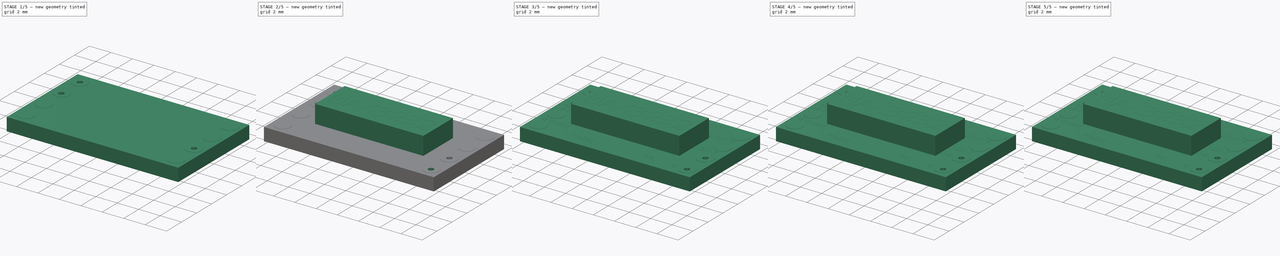
[diagram: build sequence overview — one tinted view per stage of 5, left to right]
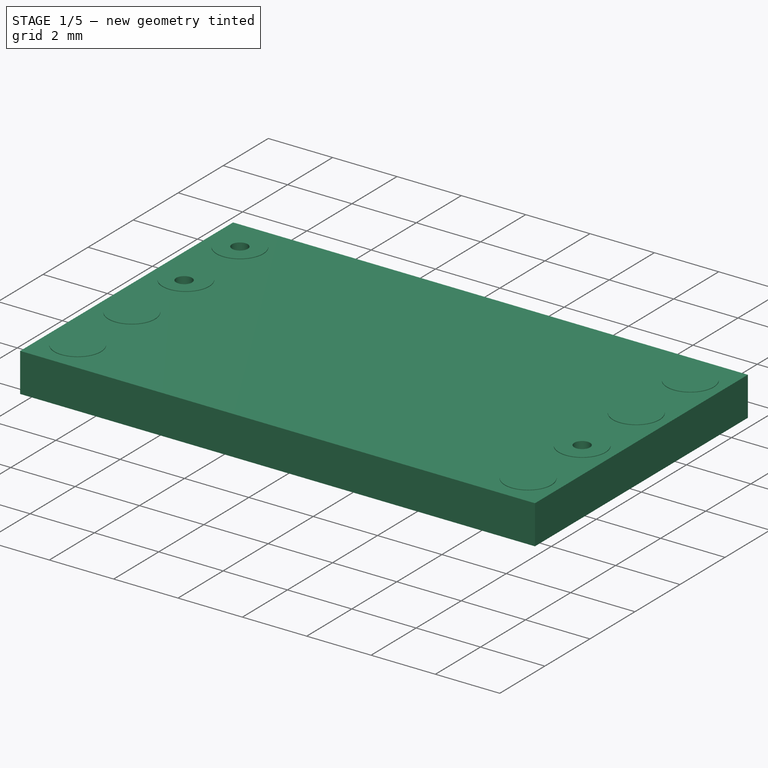
[diagram: stage 1 of 5 — iso view after this stage's code; geometry added in this stage tinted green]
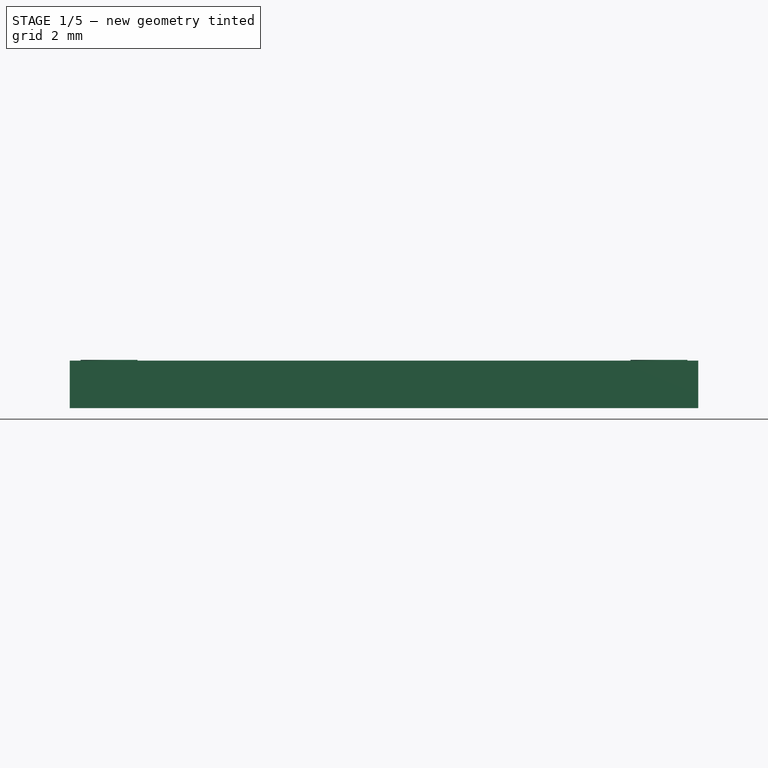
[diagram: stage 1 of 5 — front view after this stage's code; geometry added in this stage tinted green]
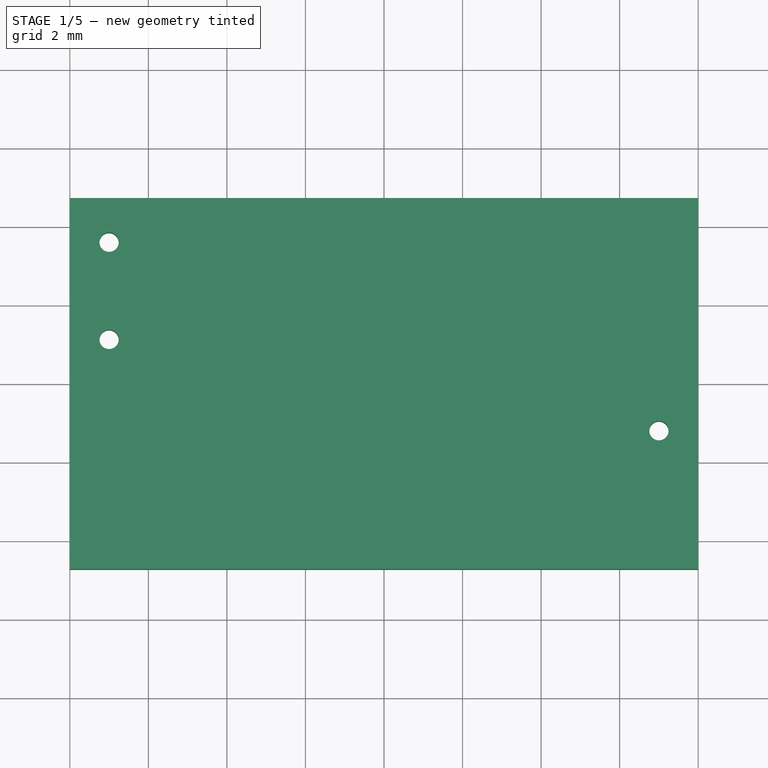
[diagram: stage 1 of 5 — top view after this stage's code; geometry added in this stage tinted green]
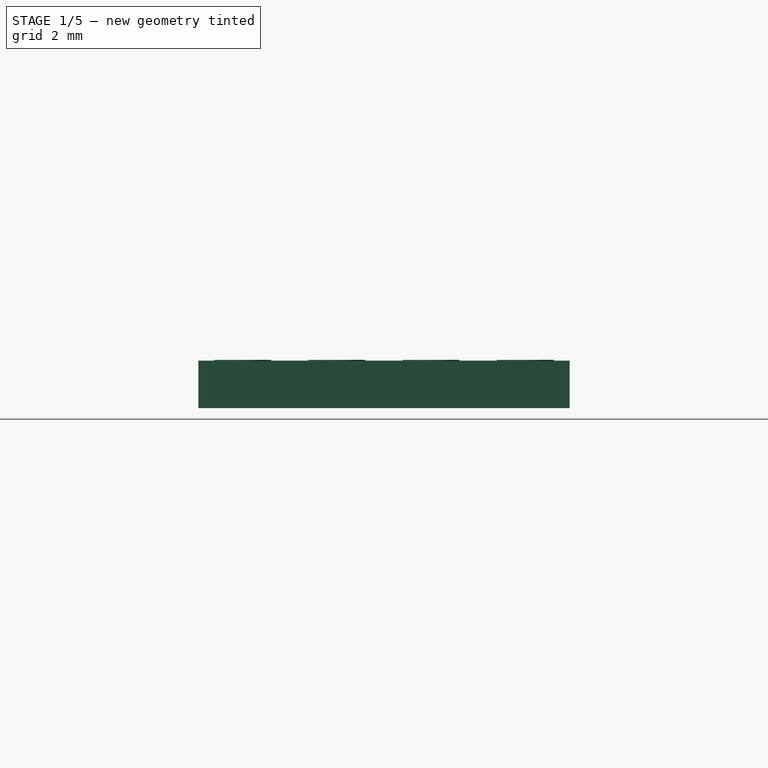
[diagram: stage 1 of 5 — right view after this stage's code; geometry added in this stage tinted green]
FCSTD DOCUMENT  (FreeCAD 0.20R29177 +426 (Git))
Label: Max3232_Module
Comment: This is a drawing to aid in documenting using this module.
License: Creative Commons Attribution
LicenseURL: http://creativecommons.org/licenses/by/4.0/
objects: PartDesign::Pad×23, Part::Part2DObjectPython×20, Sketcher::SketchObject×5, PartDesign::LinearPattern×3, PartDesign::Pocket×2, PartDesign::Body×1
note: 79 computed .brp shape members not serialized (recipe doc carries the construction recipe); baked Part::Feature solids carry a one-line shape summary decoded from their .brp

FEATURE [Sketcher::SketchObject] Sketch
  FullyConstrained = true
  MapMode = 5
  Support = -> [XY_Plane]
  sketch-geometry (4):
    g0: LineSegment StartX=-8 StartY=4.725 StartZ=0 EndX=8 EndY=4.725 EndZ=0
    g1: LineSegment StartX=8 StartY=4.725 StartZ=0 EndX=8 EndY=-4.725 EndZ=0
    g2: LineSegment StartX=8 StartY=-4.725 StartZ=0 EndX=-8 EndY=-4.725 EndZ=0
    g3: LineSegment StartX=-8 StartY=-4.725 StartZ=0 EndX=-8 EndY=4.725 EndZ=0
  constraints (10):
    c: Coincident(g0,g1)
    c: Coincident(g1,g2)
    c: Coincident(g2,g3)
    c: Coincident(g3,g0)
    c: Horizontal(g2)
    c: Vertical(g1)
    c: DistanceY(g2,g0) = 9.45  'BoardSizeY'
    c: DistanceX(g0,g0) = 16  'BoardSizeX'
    c: Symmetric(g0,g0,g-2)
    c: Symmetric(g0,g2,g-1)
FEATURE [PartDesign::Pad] Pad  label="Board"
  Direction = (0,0,1)
  Length = 1.21
  Length2 = 10
  Profile = -> Sketch
  ReferenceAxis = -> Sketch [N_Axis]
  Type = 0
FEATURE [Sketcher::SketchObject] Sketch001
  ExternalGeometry = -> [Pad]
  FullyConstrained = true
  MapMode = 5
  Support = -> [XY_Plane]
  expr: .Constraints.PadOffsetY = .Constraints.PadDiameter / 2 + 0.4mm
  expr: Constraints[4] = .Constraints.PadOffsetX
  expr: Constraints[5] = .Constraints.PadOffsetY
  sketch-geometry (2):
    g0: Circle CenterX=-7 CenterY=3.6 CenterZ=0 NormalX=0 NormalY=0 NormalZ=1 AngleXU=0 Radius=0.725
    g1: Circle CenterX=7 CenterY=3.6 CenterZ=0 NormalX=0 NormalY=0 NormalZ=1 AngleXU=0 Radius=0.725
  constraints (6):
    c: Diameter(g0) = 1.45  'PadDiameter'
    c: DistanceX(g-3,g0) = 1  'PadOffsetX'
    c: DistanceY(g0,g-3) = 1.125  'PadOffsetY'
    c: Equal(g1,g0)
    c: DistanceX(g1,g-4) = 1
    c: DistanceY(g1,g-4) = 1.125
FEATURE [PartDesign::Pad] Pad001
  BaseFeature = -> Pad
  Direction = (0,0,1)
  Length = 1.23
  Length2 = 10
  Profile = -> Sketch001
  ReferenceAxis = -> Sketch001 [N_Axis]
  Type = 0
  expr: Length = <<Board>>.Length + 0.02mm
FEATURE [PartDesign::LinearPattern] LinearPattern
  BaseFeature = -> Pad001
  Direction = -> Sketch001 [V_Axis]
  Length = 7.2
  Occurrences = 4
  Originals = -> [Pad001]
  Reversed = true
  expr: Length = Sketch.Constraints.BoardSizeY - Sketch001.Constraints.PadOffsetY * 2
FEATURE [Sketcher::SketchObject] Sketch002
  ExternalGeometry = -> [LinearPattern]
  FullyConstrained = true
  MapMode = 5
  Support = -> [XY_Plane]
  sketch-geometry (1):
    g0: Circle CenterX=-7 CenterY=3.6 CenterZ=0 NormalX=0 NormalY=0 NormalZ=1 AngleXU=0 Radius=0.245
  constraints (2):
    c: Coincident(g-4,g0)
    c: Diameter(g0) = 0.49  'PinHole'
FEATURE [PartDesign::Pocket] Pocket
  BaseFeature = -> LinearPattern
  Direction = (0,0,-1)
  Length = 4
  Length2 = 5
  Profile = -> Sketch002
  ReferenceAxis = -> Sketch002 [N_Axis]
  Reversed = true
  Type = 1
FEATURE [PartDesign::LinearPattern] LinearPattern001
  BaseFeature = -> Pocket
  Direction = -> Sketch002 [V_Axis]
  Length = 2.475
  Occurrences = 2
  Originals = -> [Pocket]
  Reversed = true
  expr: Length = Sketch.Constraints.BoardSizeY / 2 - Sketch001.Constraints.PadOffsetY * 2
FEATURE [Sketcher::SketchObject] Sketch003
  ExternalGeometry = -> [LinearPattern001]
  FullyConstrained = true
  MapMode = 5
  Support = -> [XY_Plane]
  expr: Constraints[0] = Sketch002.Constraints.PinHole
  sketch-geometry (1):
    g0: Circle CenterX=7 CenterY=-1.2 CenterZ=0 NormalX=0 NormalY=0 NormalZ=1 AngleXU=0 Radius=0.245
  constraints (2):
    c: Diameter(g0) = 0.49
    c: Coincident(g0,g-3)
FEATURE [PartDesign::Pocket] Pocket001
  BaseFeature = -> LinearPattern001
  Direction = (0,0,-1)
  Length = 5
  Length2 = 5
  Profile = -> Sketch003
  ReferenceAxis = -> Sketch003 [N_Axis]
  Reversed = true
  Type = 1
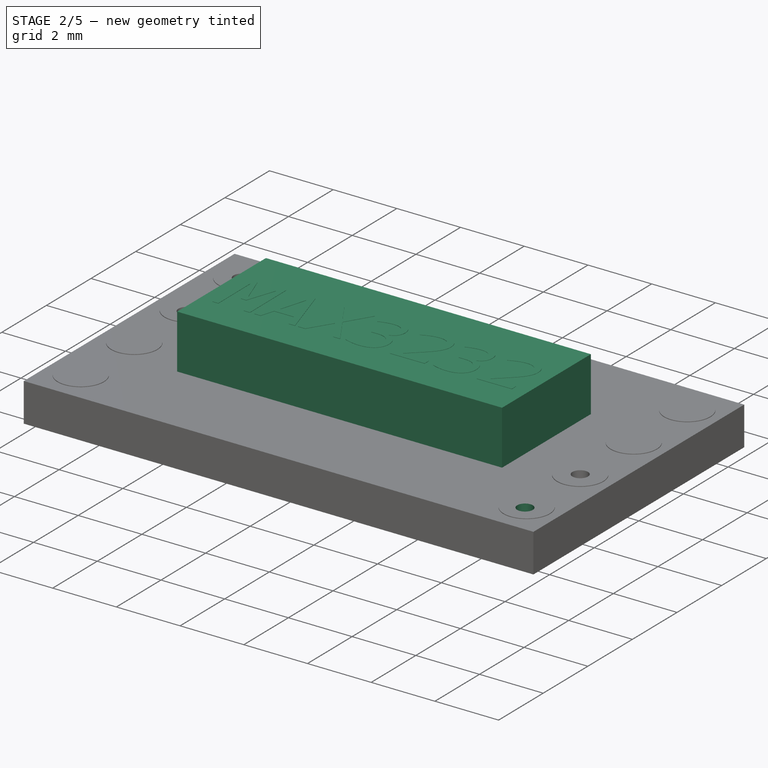
[diagram: stage 2 of 5 — iso view after this stage's code; geometry added in this stage tinted green]
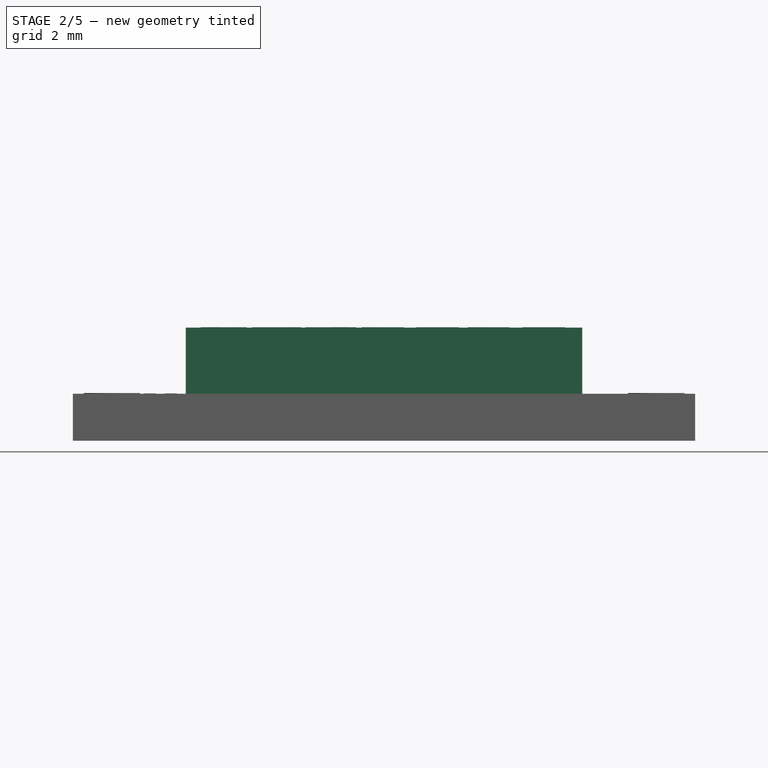
[diagram: stage 2 of 5 — front view after this stage's code; geometry added in this stage tinted green]
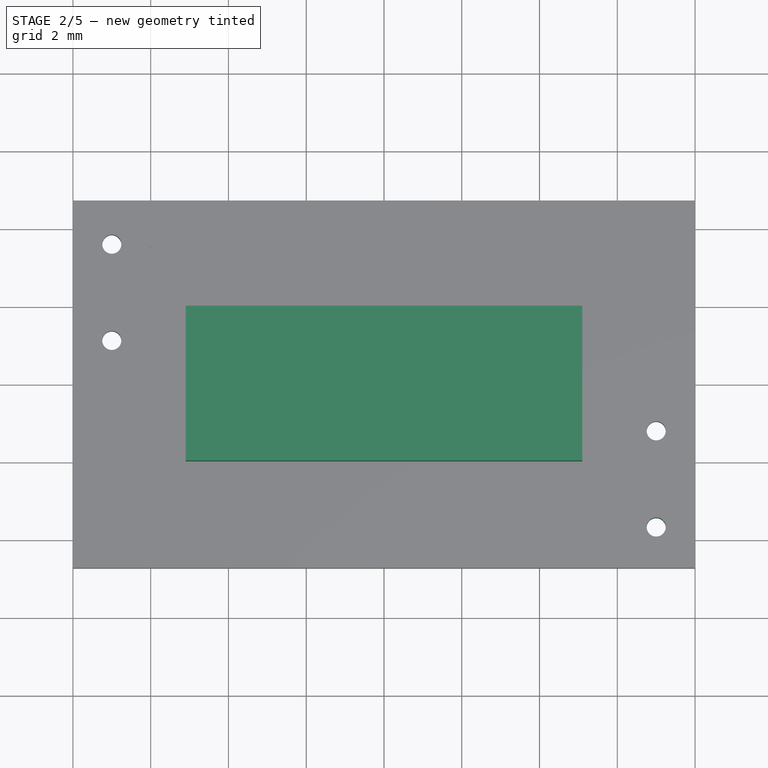
[diagram: stage 2 of 5 — top view after this stage's code; geometry added in this stage tinted green]
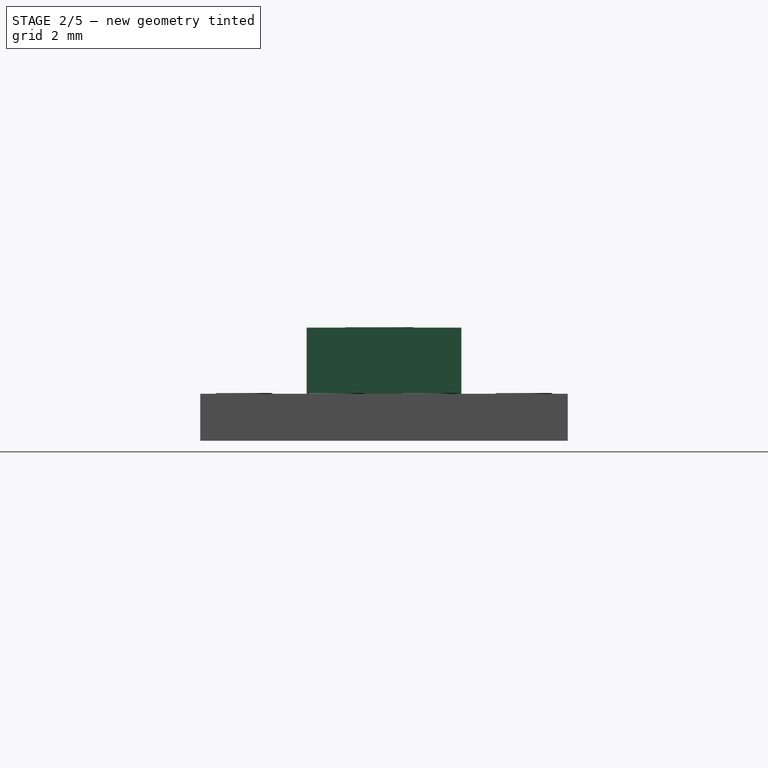
[diagram: stage 2 of 5 — right view after this stage's code; geometry added in this stage tinted green]
FEATURE [PartDesign::LinearPattern] LinearPattern002
  BaseFeature = -> Pocket001
  Direction = -> Sketch003 [V_Axis]
  Length = 2.475
  Occurrences = 2
  Originals = -> [Pocket001]
  Reversed = true
  expr: Length = Sketch.Constraints.BoardSizeY / 2 - Sketch001.Constraints.PadOffsetY * 2
FEATURE [Sketcher::SketchObject] Sketch004
  AttachmentOffset = pos=(0,0,1.21) rot=(0,0,1;0rad)
  FullyConstrained = true
  MapMode = 5
  Placement = pos=(0,0,1.21) rot=(0,0,1;0rad)
  Support = -> [XY_Plane]
  expr: .AttachmentOffset.Base.z = <<Board>>.Length
  sketch-geometry (4):
    g0: LineSegment StartX=-5.1 StartY=1.99 StartZ=0 EndX=5.1 EndY=1.99 EndZ=0
    g1: LineSegment StartX=5.1 StartY=1.99 StartZ=0 EndX=5.1 EndY=-1.99 EndZ=0
    g2: LineSegment StartX=5.1 StartY=-1.99 StartZ=0 EndX=-5.1 EndY=-1.99 EndZ=0
    g3: LineSegment StartX=-5.1 StartY=-1.99 StartZ=0 EndX=-5.1 EndY=1.99 EndZ=0
  constraints (10):
    c: Coincident(g0,g1)
    c: Coincident(g1,g2)
    c: Coincident(g2,g3)
    c: Coincident(g3,g0)
    c: Horizontal(g2)
    c: Vertical(g1)
    c: DistanceX(g0,g0) = 10.2  'MAX3232_Length'
    c: DistanceY(g3,g3) = 3.98  'MAX3232_Width'
    c: Symmetric(g0,g0,g-2)
    c: Symmetric(g0,g2,g-1)
FEATURE [PartDesign::Pad] Pad002
  BaseFeature = -> LinearPattern002
  Direction = (0,0,1)
  Length = 1.7
  Length2 = 10
  Profile = -> Sketch004
  ReferenceAxis = -> Sketch004 [N_Axis]
  Type = 0
FEATURE [Part::Part2DObjectPython] ShapeString  # Draft 2D object (typed FeaturePython)
  FontFile = <path>
  MakeFace = true
  Placement = pos=(-4.79704,-0.981008,2.91) rot=(0,0,1;0.006688rad)
  Size = 1.75
  String = MAX3232
  Tracking = 0
FEATURE [PartDesign::Pad] Pad003
  BaseFeature = -> Pad002
  Direction = (0,0,1)
  Length = 0.01
  Length2 = 10
  Profile = -> ShapeString
  ReferenceAxis = -> ShapeString [N_Axis]
  Type = 0
FEATURE [Part::Part2DObjectPython] ShapeString001  # Draft 2D object (typed FeaturePython)
  FontFile = <path>
  MakeFace = true
  Placement = pos=(-6.21,3.52,1.21) rot=(0,0,1;0rad)
  Size = 0.5
  String = 1 -
  Tracking = 0
FEATURE [Part::Part2DObjectPython] ShapeString002  # Draft 2D object (typed FeaturePython)
  FontFile = <path>
  MakeFace = true
  Placement = pos=(-6.19669,0.91707,1.21) rot=(0,0,1;0rad)
  Size = 0.5
  String = 2 +
  Tracking = 0
FEATURE [Part::Part2DObjectPython] ShapeString003  # Draft 2D object (typed FeaturePython)
  FontFile = <path>
  MakeFace = true
  Placement = pos=(-7.36191,-0.352329,1.21) rot=(0,0,1;0rad)
  Size = 0.5
  String = 3 R2IN
  Tracking = 0
FEATURE [Part::Part2DObjectPython] ShapeString004  # Draft 2D object (typed FeaturePython)
  FontFile = <path>
  MakeFace = true
  Placement = pos=(-7.4172,-2.71665,1.21) rot=(0,0,1;0rad)
  Size = 0.5
  String = 4 T1OUT
  Tracking = 0
FEATURE [Part::Part2DObjectPython] ShapeString005  # Draft 2D object (typed FeaturePython)
  FontFile = <path>
  MakeFace = true
  Placement = pos=(-3.89806,-3.83004,1.21) rot=(0,0,1;0rad)
  Size = 0.5
  String = RS232                           TTL
  Tracking = 0
FEATURE [Part::Part2DObjectPython] ShapeString006  # Draft 2D object (typed FeaturePython)
  FontFile = <path>
  MakeFace = true
  Placement = pos=(5.27,-3.95,1.21) rot=(0,0,1;0rad)
  Size = 0.5
  String = - 5
  Tracking = 0
FEATURE [Part::Part2DObjectPython] ShapeString008  # Draft 2D object (typed FeaturePython)
  FontFile = <path>
  MakeFace = true
  Placement = pos=(5.24,-0.22,1.21) rot=(0,0,1;0rad)
  Size = 0.5
  String = T2IN 7
  Tracking = 0
FEATURE [Part::Part2DObjectPython] ShapeString009  # Draft 2D object (typed FeaturePython)
  FontFile = <path>
  MakeFace = true
  Placement = pos=(4.40656,2.21341,1.21) rot=(0,0,1;0rad)
  Size = 0.5
  String = R2OUT 8
  Tracking = 0
FEATURE [Part::Part2DObjectPython] ShapeString010  # Draft 2D object (typed FeaturePython)
  FontFile = <path>
  MakeFace = true
  Placement = pos=(5.17279,-1.51148,1.21) rot=(0,0,1;0rad)
  Size = 0.5
  String = + 6
  Tracking = 0
FEATURE [PartDesign::Pad] Pad004
  BaseFeature = -> Pad003
  Direction = (0,0,1)
  Length = 0.01
  Length2 = 10
  Profile = -> ShapeString001
  ReferenceAxis = -> ShapeString001 [N_Axis]
  Type = 0
FEATURE [PartDesign::Pad] Pad005
  BaseFeature = -> Pad004
  Direction = (0,0,1)
  Length = 0.01
  Length2 = 10
  Profile = -> ShapeString002
  ReferenceAxis = -> ShapeString002 [N_Axis]
  Type = 0
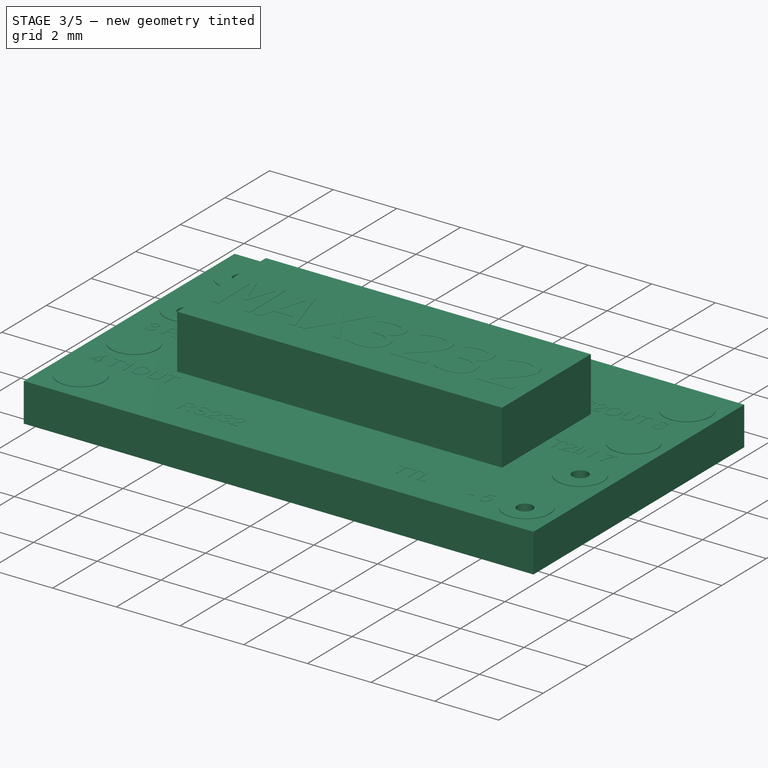
[diagram: stage 3 of 5 — iso view after this stage's code; geometry added in this stage tinted green]
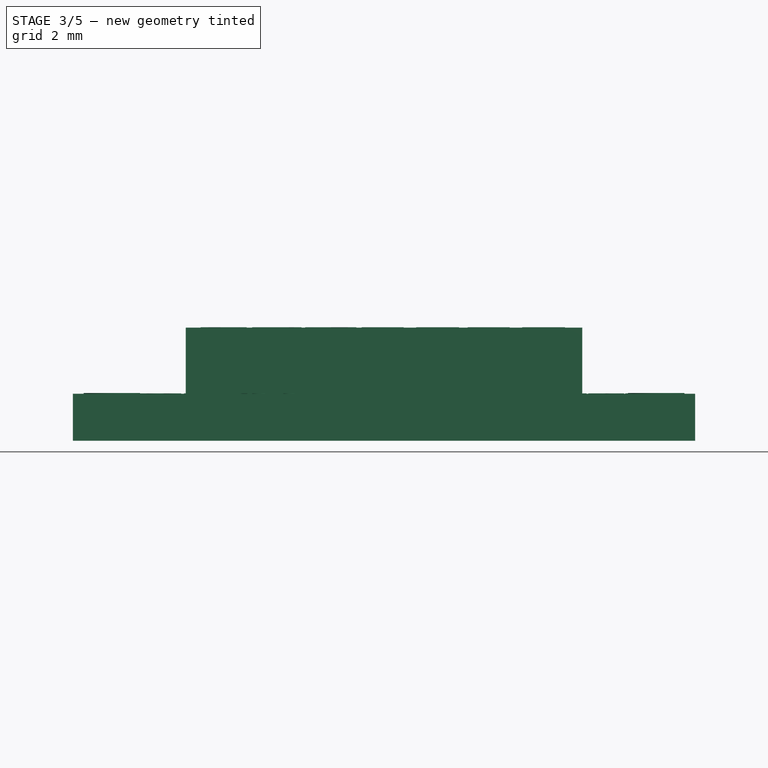
[diagram: stage 3 of 5 — front view after this stage's code; geometry added in this stage tinted green]
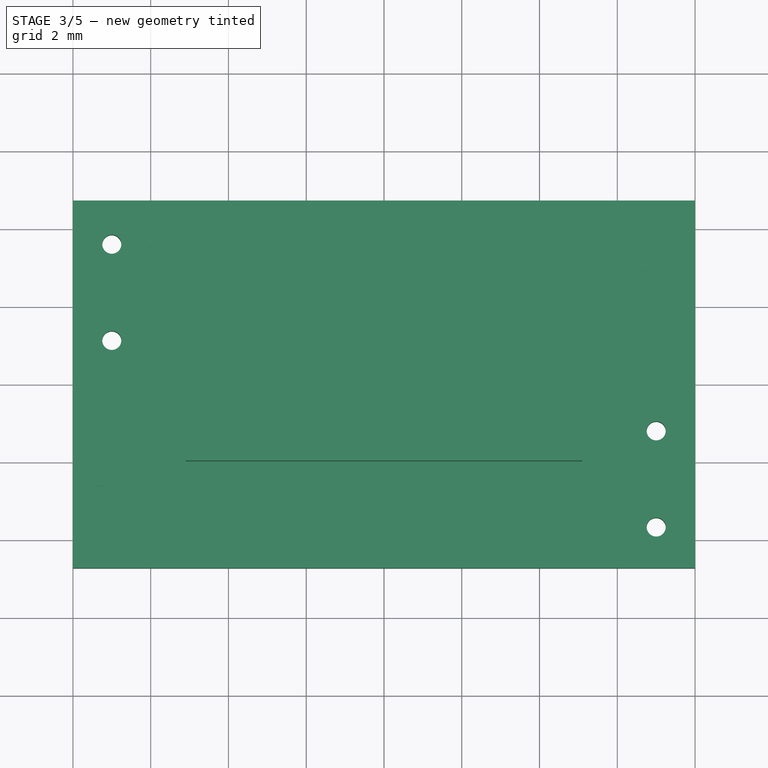
[diagram: stage 3 of 5 — top view after this stage's code; geometry added in this stage tinted green]
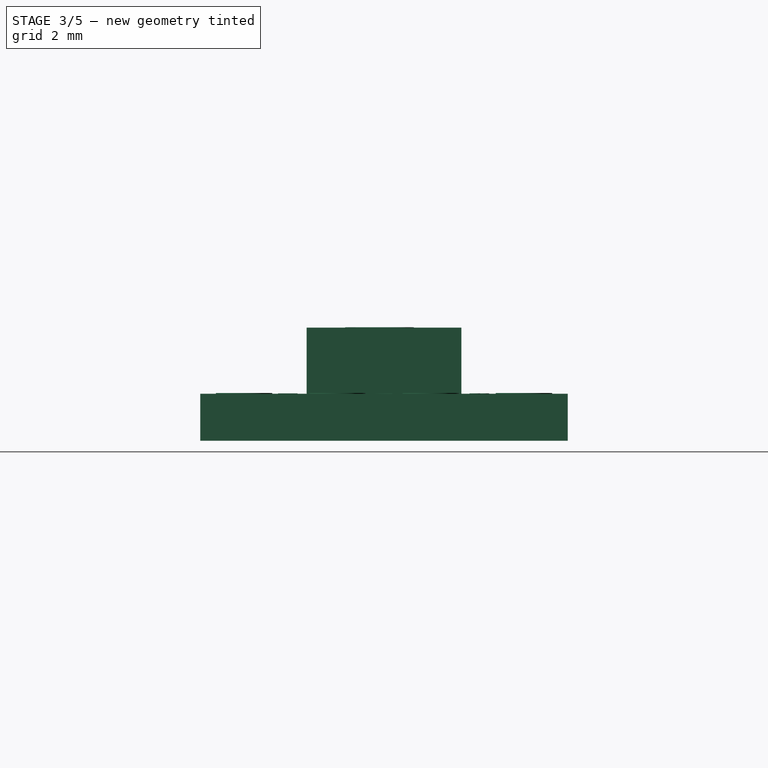
[diagram: stage 3 of 5 — right view after this stage's code; geometry added in this stage tinted green]
FEATURE [PartDesign::Pad] Pad006
  BaseFeature = -> Pad005
  Direction = (0,0,1)
  Length = 0.01
  Length2 = 10
  Profile = -> ShapeString003
  ReferenceAxis = -> ShapeString003 [N_Axis]
  Type = 0
FEATURE [PartDesign::Pad] Pad007
  BaseFeature = -> Pad006
  Direction = (0,0,1)
  Length = 0.01
  Length2 = 10
  Profile = -> ShapeString004
  ReferenceAxis = -> ShapeString004 [N_Axis]
  Type = 0
FEATURE [PartDesign::Pad] Pad008
  BaseFeature = -> Pad007
  Direction = (0,0,1)
  Length = 0.01
  Length2 = 10
  Profile = -> ShapeString005
  ReferenceAxis = -> ShapeString005 [N_Axis]
  Type = 0
FEATURE [PartDesign::Pad] Pad009
  BaseFeature = -> Pad008
  Direction = (0,0,1)
  Length = 0.01
  Length2 = 10
  Profile = -> ShapeString006
  ReferenceAxis = -> ShapeString006 [N_Axis]
  Type = 0
FEATURE [PartDesign::Pad] Pad010
  BaseFeature = -> Pad009
  Direction = (0,0,1)
  Length = 0.01
  Length2 = 10
  Profile = -> ShapeString008
  ReferenceAxis = -> ShapeString008 [N_Axis]
  Type = 0
FEATURE [PartDesign::Pad] Pad011
  BaseFeature = -> Pad010
  Direction = (0,0,1)
  Length = 0.01
  Length2 = 10
  Profile = -> ShapeString009
  ReferenceAxis = -> ShapeString009 [N_Axis]
  Type = 0
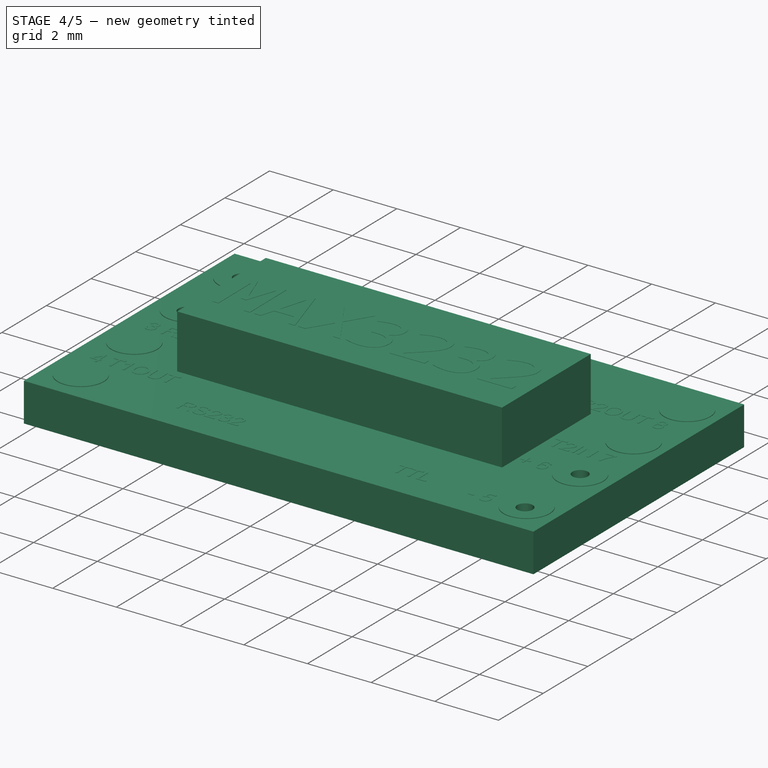
[diagram: stage 4 of 5 — iso view after this stage's code; geometry added in this stage tinted green]
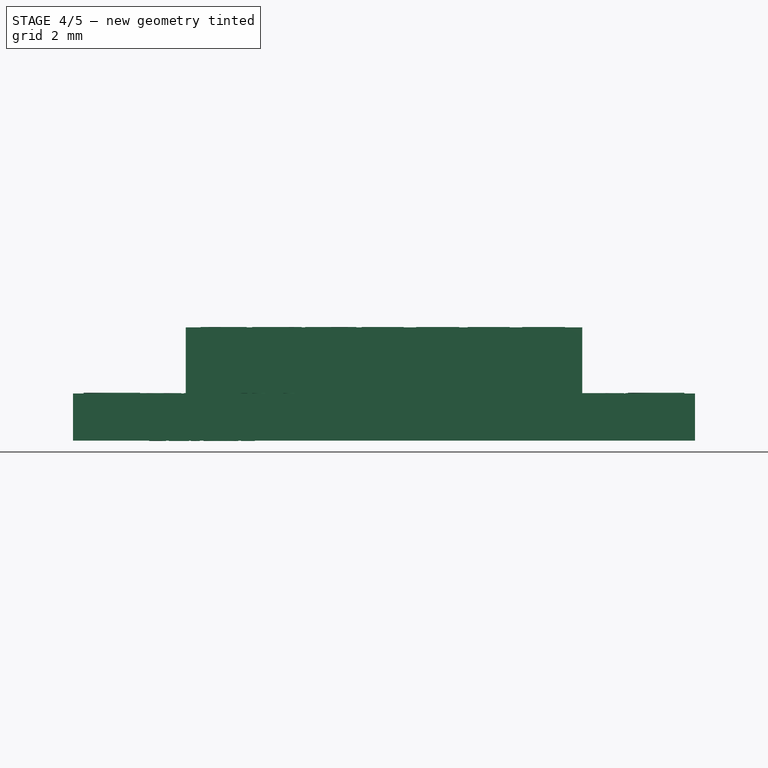
[diagram: stage 4 of 5 — front view after this stage's code; geometry added in this stage tinted green]
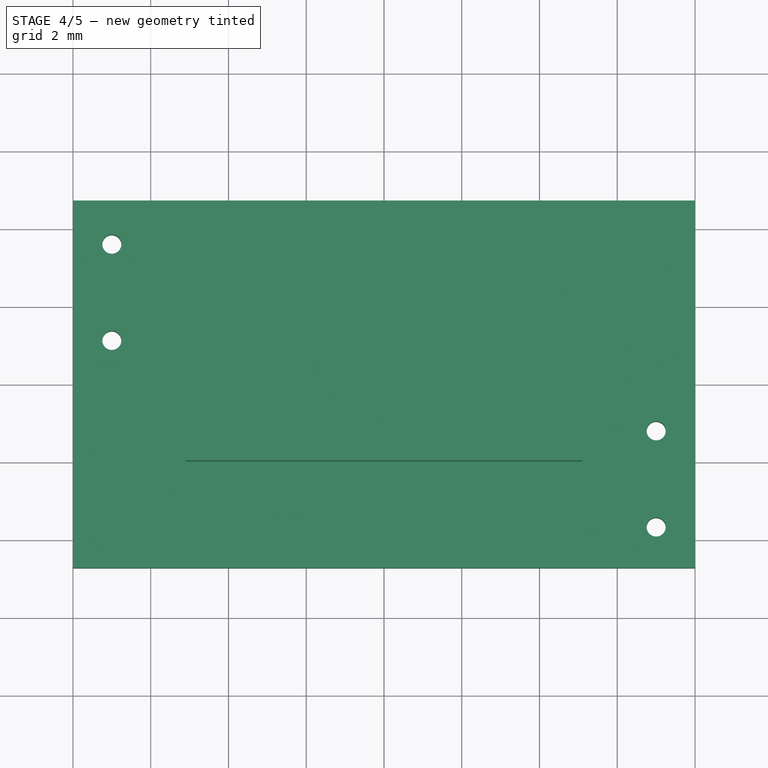
[diagram: stage 4 of 5 — top view after this stage's code; geometry added in this stage tinted green]
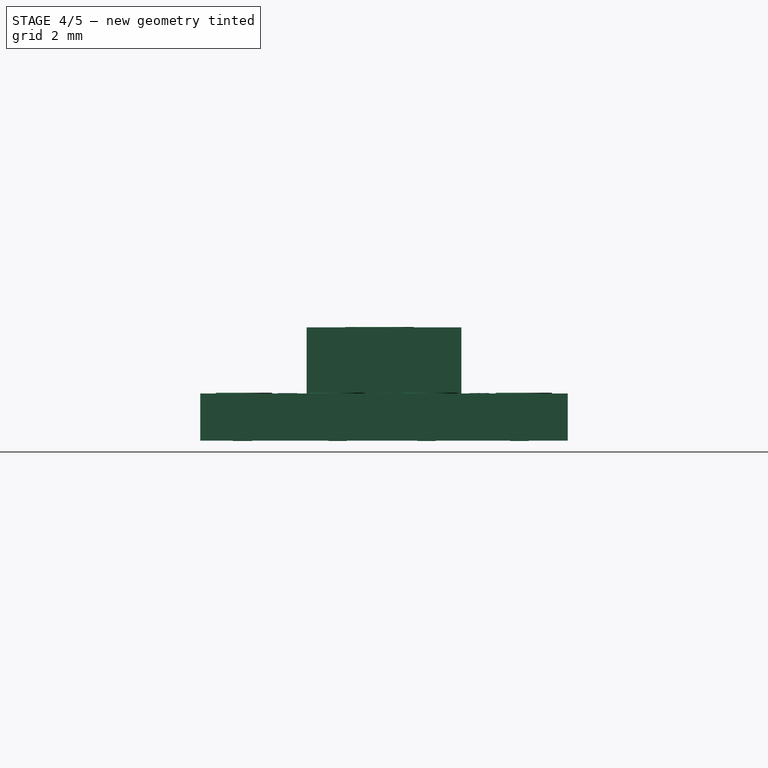
[diagram: stage 4 of 5 — right view after this stage's code; geometry added in this stage tinted green]
FEATURE [PartDesign::Pad] Pad012
  BaseFeature = -> Pad011
  Direction = (0,0,1)
  Length = 0.01
  Length2 = 10
  Profile = -> ShapeString010
  ReferenceAxis = -> ShapeString010 [N_Axis]
  Type = 0
FEATURE [Part::Part2DObjectPython] ShapeString011  # Draft 2D object (typed FeaturePython)
  FontFile = <path>
  MakeFace = true
  Placement = pos=(-6.10758,3.72098,0) rot=(1,0,0;3.14159rad)
  Size = 0.5
  String = 1 -
  Tracking = 0
FEATURE [Part::Part2DObjectPython] ShapeString012  # Draft 2D object (typed FeaturePython)
  FontFile = <path>
  MakeFace = true
  Placement = pos=(-6.03368,1.32994,0) rot=(1,0,0;3.14159rad)
  Size = 0.5
  String = 2 +
  Tracking = 0
FEATURE [Part::Part2DObjectPython] ShapeString013  # Draft 2D object (typed FeaturePython)
  FontFile = <path>
  MakeFace = true
  Placement = pos=(-6.00326,-0.956826,0) rot=(1,0,0;3.14159rad)
  Size = 0.5
  String = 3 R1IN
  Tracking = 0
FEATURE [Part::Part2DObjectPython] ShapeString014  # Draft 2D object (typed FeaturePython)
  FontFile = <path>
  MakeFace = true
  Placement = pos=(-5.9467,-3.40435,0) rot=(1,0,0;3.14159rad)
  Size = 0.5
  String = 4 T1OUT
  Tracking = 0
FEATURE [Part::Part2DObjectPython] ShapeString015  # Draft 2D object (typed FeaturePython)
  FontFile = <path>
  MakeFace = true
  Placement = pos=(5.01247,-3.35198,-9e-16) rot=(1,0,0;3.14159rad)
  Size = 0.5
  String = - 5
  Tracking = 0
FEATURE [Part::Part2DObjectPython] ShapeString016  # Draft 2D object (typed FeaturePython)
  FontFile = <path>
  MakeFace = true
  Placement = pos=(4.81954,-0.936191,0) rot=(1,0,0;3.14159rad)
  Size = 0.5
  String = + 6
  Tracking = 0
FEATURE [Part::Part2DObjectPython] ShapeString017  # Draft 2D object (typed FeaturePython)
  FontFile = <path>
  MakeFace = true
  Placement = pos=(3.89217,1.51015,0) rot=(1,0,0;3.14159rad)
  Size = 0.5
  String = T2IN 7
  Tracking = 0
FEATURE [Part::Part2DObjectPython] ShapeString018  # Draft 2D object (typed FeaturePython)
  FontFile = <path>
  MakeFace = true
  Placement = pos=(3.11049,3.82222,-4e-16) rot=(1,0,0;3.14159rad)
  Size = 0.5
  String = R1OUT 8
  Tracking = 0
FEATURE [Part::Part2DObjectPython] ShapeString019  # Draft 2D object (typed FeaturePython)
  FontFile = <path>
  MakeFace = true
  Placement = pos=(-4.18706,-2.01179,0) rot=(1,0,0;3.14159rad)
  Size = 0.8
  String = RS232
  Tracking = 0
FEATURE [Part::Part2DObjectPython] ShapeString020  # Draft 2D object (typed FeaturePython)
  FontFile = <path>
  MakeFace = true
  Placement = pos=(0.85824,2.69567,0) rot=(1,0,0;3.14159rad)
  Size = 0.8
  String = TTL
  Tracking = 0
FEATURE [PartDesign::Pad] Pad013
  BaseFeature = -> Pad012
  Direction = (0,0,-1)
  Length = 0.01
  Length2 = 10
  Profile = -> ShapeString011
  ReferenceAxis = -> ShapeString011 [N_Axis]
  Type = 0
FEATURE [PartDesign::Pad] Pad014
  BaseFeature = -> Pad013
  Direction = (0,0,-1)
  Length = 0.01
  Length2 = 10
  Profile = -> ShapeString012
  ReferenceAxis = -> ShapeString012 [N_Axis]
  Type = 0
FEATURE [PartDesign::Pad] Pad015
  BaseFeature = -> Pad014
  Direction = (0,0,-1)
  Length = 0.01
  Length2 = 10
  Profile = -> ShapeString013
  ReferenceAxis = -> ShapeString013 [N_Axis]
  Type = 0
FEATURE [PartDesign::Pad] Pad016
  BaseFeature = -> Pad015
  Direction = (0,0,-1)
  Length = 0.01
  Length2 = 10
  Profile = -> ShapeString014
  ReferenceAxis = -> ShapeString014 [N_Axis]
  Type = 0
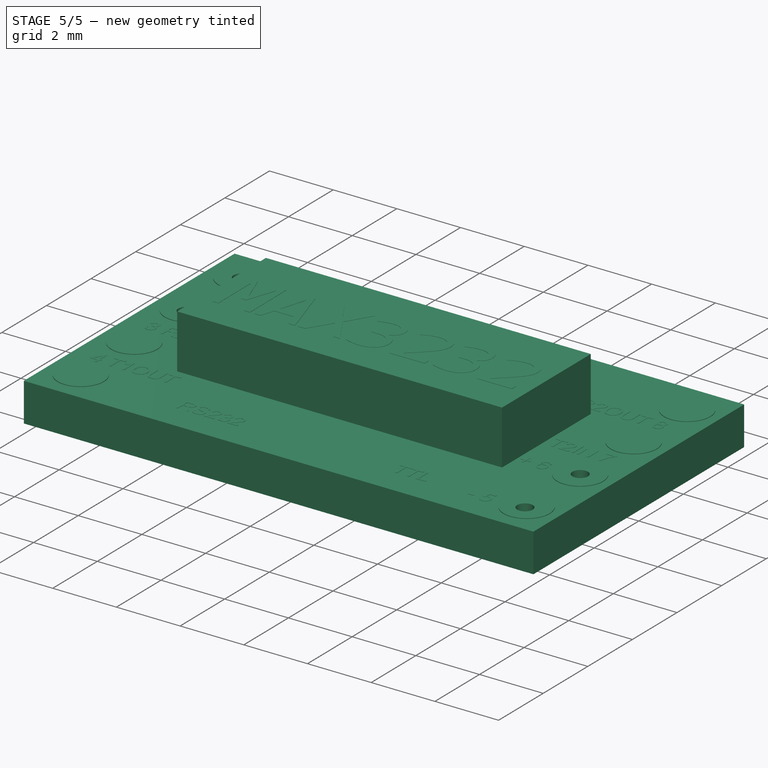
[diagram: stage 5 of 5 — iso view after this stage's code; geometry added in this stage tinted green]
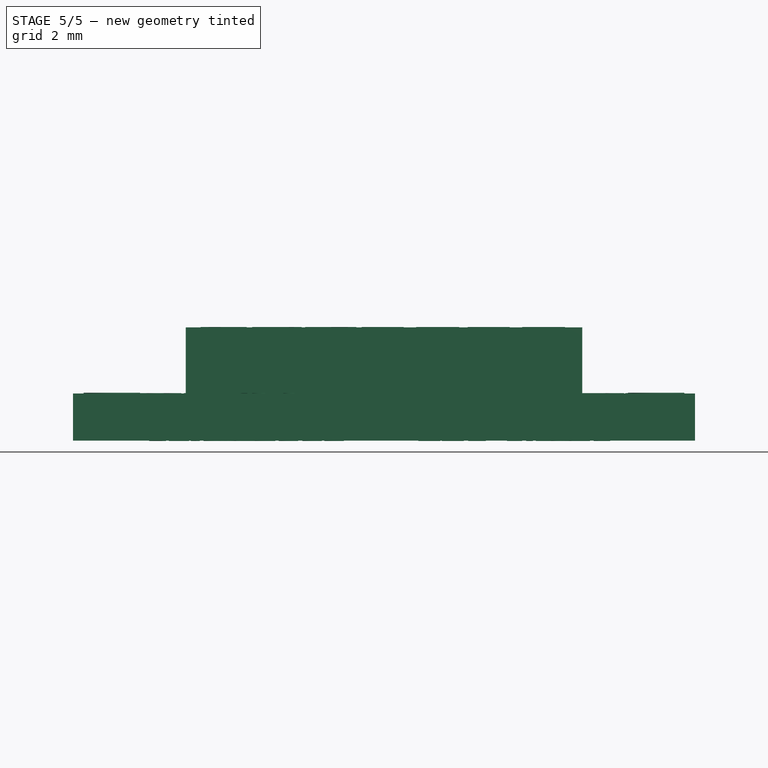
[diagram: stage 5 of 5 — front view after this stage's code; geometry added in this stage tinted green]
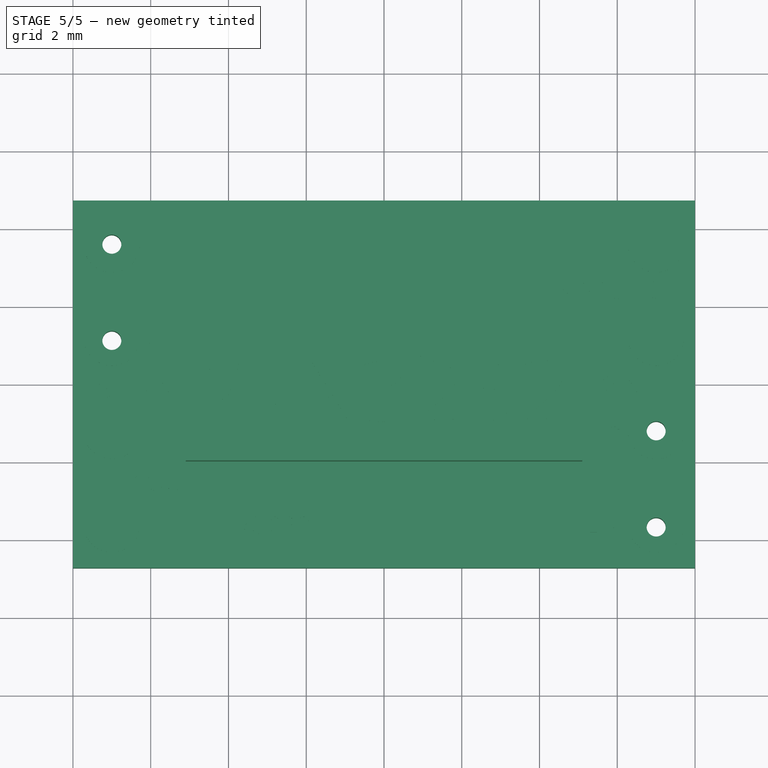
[diagram: stage 5 of 5 — top view after this stage's code; geometry added in this stage tinted green]
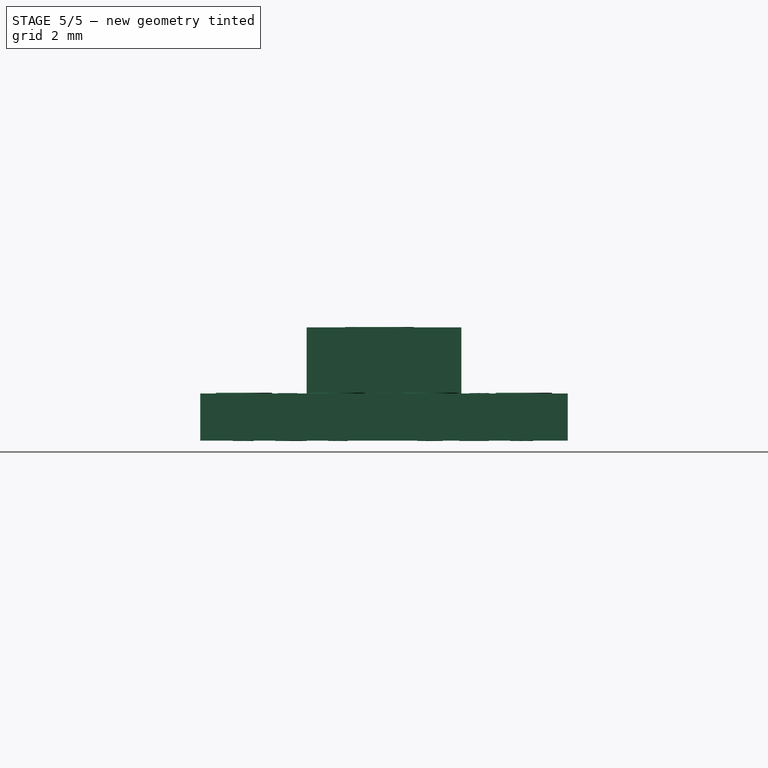
[diagram: stage 5 of 5 — right view after this stage's code; geometry added in this stage tinted green]
FEATURE [PartDesign::Pad] Pad017
  BaseFeature = -> Pad016
  Direction = (0,0,-1)
  Length = 0.01
  Length2 = 10
  Profile = -> ShapeString015
  ReferenceAxis = -> ShapeString015 [N_Axis]
  Type = 0
FEATURE [PartDesign::Pad] Pad018
  BaseFeature = -> Pad017
  Direction = (0,0,-1)
  Length = 0.01
  Length2 = 10
  Profile = -> ShapeString016
  ReferenceAxis = -> ShapeString016 [N_Axis]
  Type = 0
FEATURE [PartDesign::Pad] Pad019
  BaseFeature = -> Pad018
  Direction = (0,0,-1)
  Length = 0.01
  Length2 = 10
  Profile = -> ShapeString017
  ReferenceAxis = -> ShapeString017 [N_Axis]
  Type = 0
FEATURE [PartDesign::Pad] Pad020
  BaseFeature = -> Pad019
  Direction = (0,0,-1)
  Length = 0.01
  Length2 = 10
  Profile = -> ShapeString018
  ReferenceAxis = -> ShapeString018 [N_Axis]
  Type = 0
FEATURE [PartDesign::Pad] Pad021
  BaseFeature = -> Pad020
  Direction = (0,0,-1)
  Length = 0.01
  Length2 = 10
  Profile = -> ShapeString019
  ReferenceAxis = -> ShapeString019 [N_Axis]
  Type = 0
FEATURE [PartDesign::Pad] Pad022
  BaseFeature = -> Pad021
  Direction = (0,0,-1)
  Length = 0.01
  Length2 = 10
  Profile = -> ShapeString020
  ReferenceAxis = -> ShapeString020 [N_Axis]
  Type = 0
FEATURE [PartDesign::Body] Body
  Group = -> [Sketch,Pad,Sketch001,Pad001,LinearPattern,Sketch002,Pocket,LinearPattern001,Sketch003,Pocket001,LinearPattern002,Sketch004,Pad002,ShapeString,Pad003,ShapeString001,ShapeString002,ShapeString003,ShapeString004,ShapeString005,ShapeString006,ShapeString008,ShapeString009,ShapeString010,Pad004,Pad005,Pad006,Pad007,Pad008,Pad009,Pad010,Pad011,Pad012,ShapeString011,ShapeString012,ShapeString013,+17 more]
  Origin = -> Origin
  Tip = -> Pad022
note: 20 file-system paths scrubbed to <path> (originals preserved in the JSON sidecar)
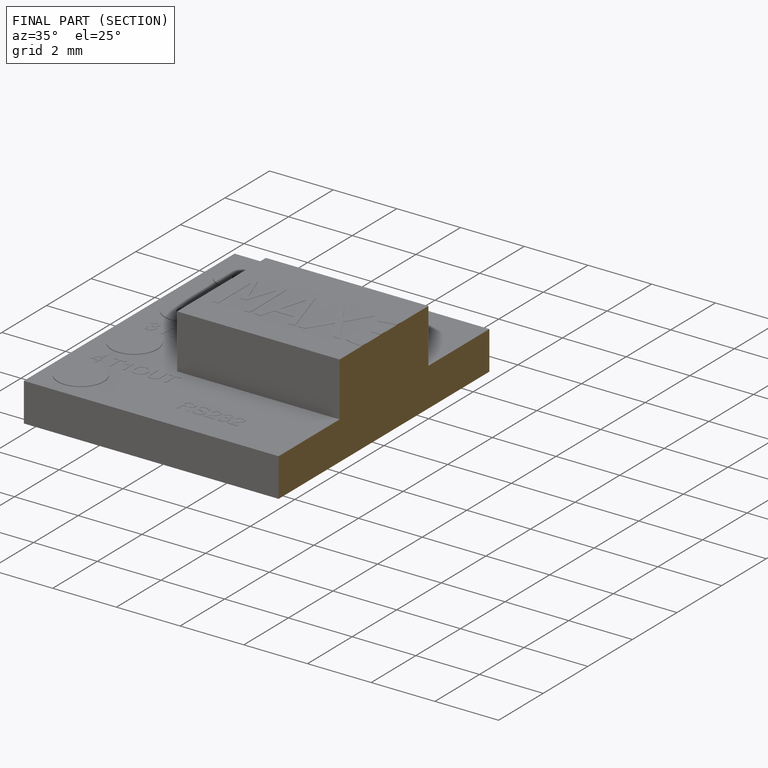
[diagram: finished part — half-section view (interior)]
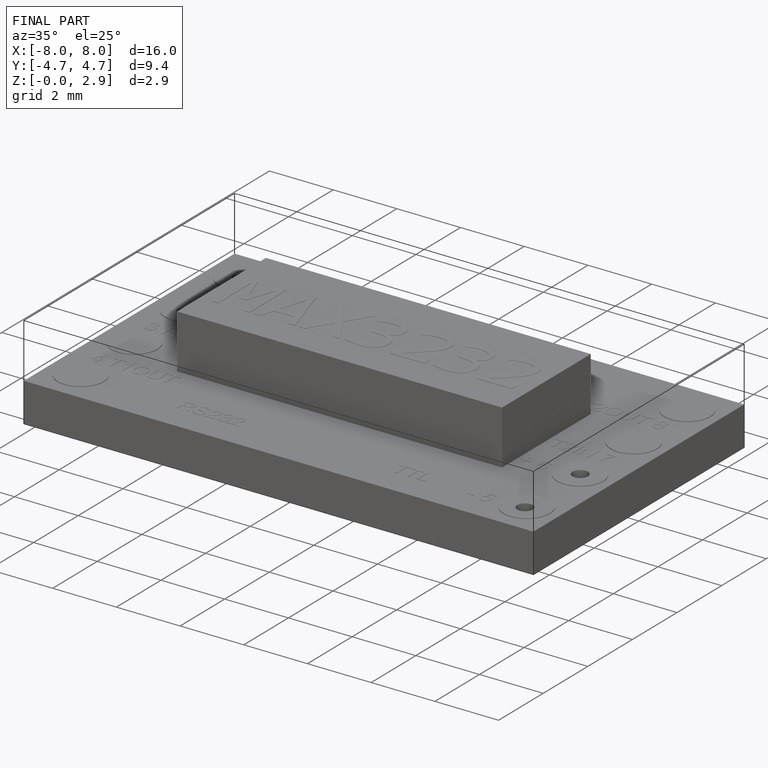
[diagram: finished part — iso view with bounding-box wireframe]
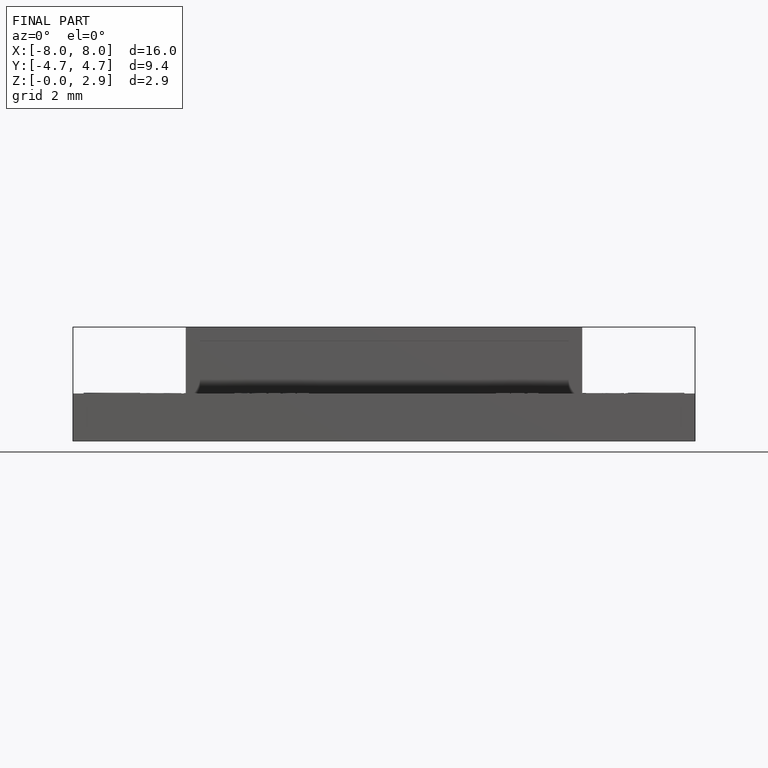
[diagram: finished part — front view with bounding-box wireframe]
